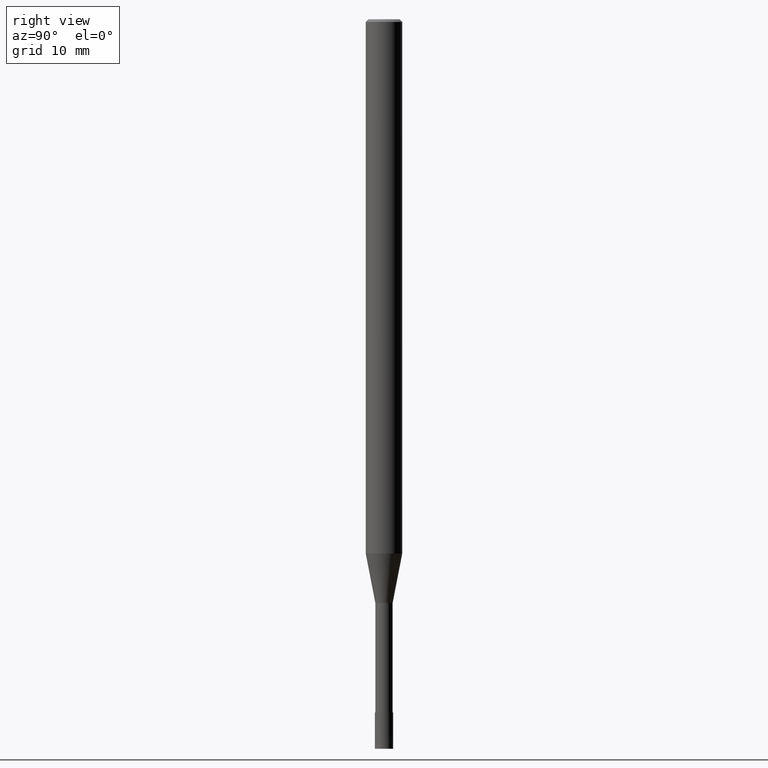
[diagram: clean part render]
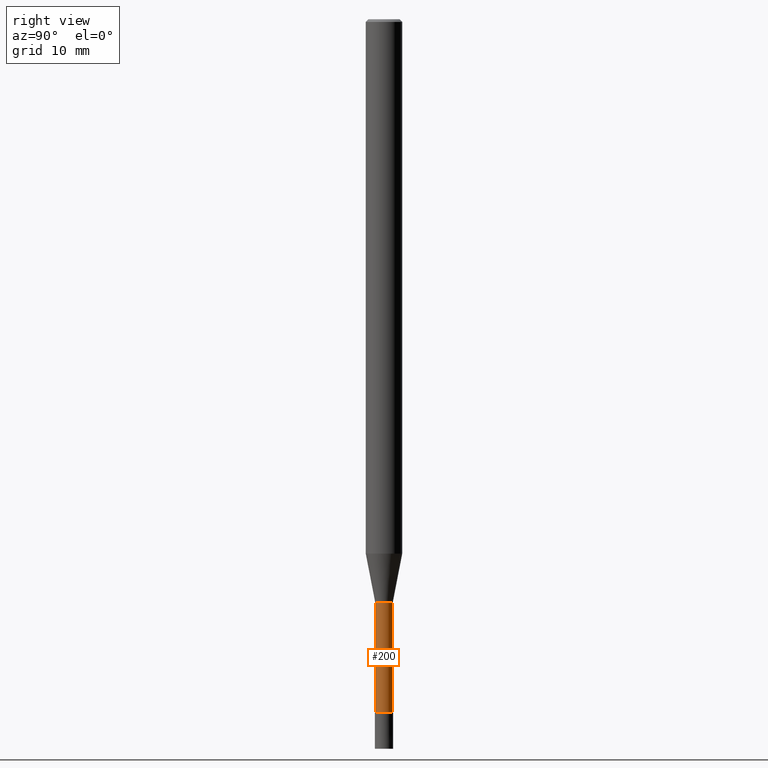
[diagram: same view with one face highlighted and labeled with its STEP entity id]
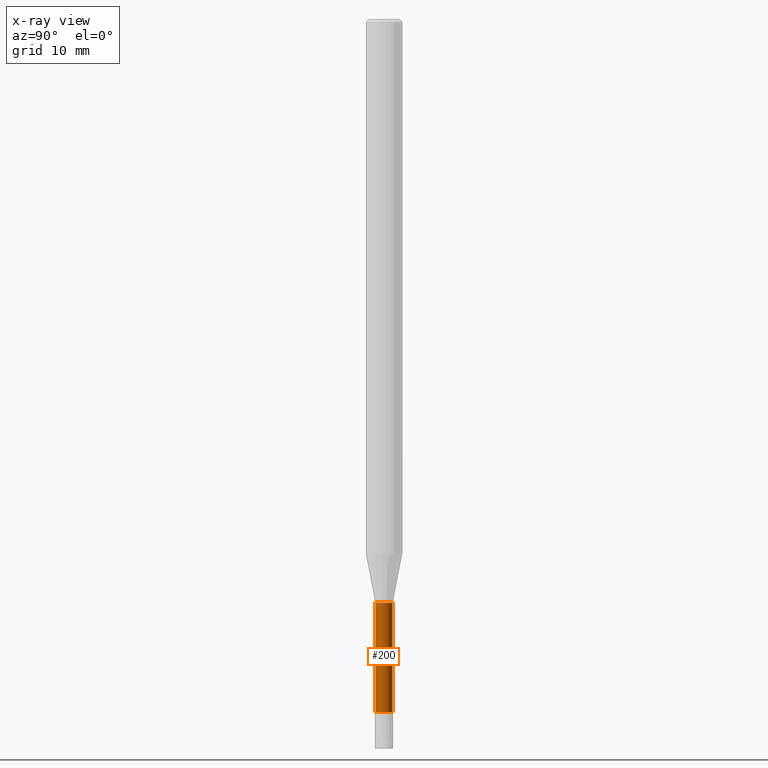
[diagram: x-ray of the same camera — body ghosted, the highlighted face saturated]
A machine part, right view. The second image highlights one B-rep face of the part: STEP entity #200.
The next image is the same camera in x-ray: the body ghosted, the highlighted face saturated — about 0% of this face is hidden behind the body in this view.
In plain terms, the highlighted cylindrical surface (edge-blend (fillet) strip) has radius 0.9499 mm, axis along (-0, -0, 1).
Its self-contained STEP definition (entity closure, byte-faithful):
#106=EDGE_CURVE('',#164,#178,#247,.T.);
#122=VERTEX_POINT('',#266);
#162=EDGE_CURVE('',#122,#164,#311,.T.);
#164=VERTEX_POINT('',#313);
#170=EDGE_CURVE('',#178,#196,#319,.T.);
#178=VERTEX_POINT('',#328);
#196=VERTEX_POINT('',#347);
#198=EDGE_CURVE('',#122,#196,#349,.T.);
#200=ADVANCED_FACE('',(#351),#352,.T.);
#247=CIRCLE('',#394,0.94995);
#266=CARTESIAN_POINT('',(0.0,0.94995,-64.0));
#311=LINE('',#478,#479);
#313=CARTESIAN_POINT('',(0.0,0.94995,-76.0));
#319=LINE('',#488,#489);
#328=CARTESIAN_POINT('',(1.16331480581357E-016,-0.94995,-76.0));
#347=CARTESIAN_POINT('',(1.16331480581357E-016,-0.94995,-64.0));
#349=CIRCLE('',#526,0.94995);
#351=FACE_OUTER_BOUND('',#528,.T.);
#352=CYLINDRICAL_SURFACE('',#529,0.94995);
#394=AXIS2_PLACEMENT_3D('',#573,#574,#575);
#478=CARTESIAN_POINT('',(-1.16331480581357E-016,0.94995,-70.0));
#479=VECTOR('',#661,1.0);
#488=CARTESIAN_POINT('',(1.16331480581357E-016,-0.94995,-70.0));
#489=VECTOR('',#666,1.0);
#526=AXIS2_PLACEMENT_3D('',#689,#690,#691);
#528=EDGE_LOOP('',(#693,#694,#695,#696));
#529=AXIS2_PLACEMENT_3D('',#697,#698,#699);
#573=CARTESIAN_POINT('',(0.0,0.0,-76.0));
#574=DIRECTION('',(0.0,0.0,-1.0));
#575=DIRECTION('',(0.0,1.0,0.0));
#661=DIRECTION('',(0.0,0.0,-1.0));
#666=DIRECTION('',(-0.0,-0.0,1.0));
#689=CARTESIAN_POINT('',(0.0,0.0,-64.0));
#690=DIRECTION('',(0.0,0.0,-1.0));
#691=DIRECTION('',(0.0,1.0,0.0));
#693=ORIENTED_EDGE('',*,*,#162,.F.);
#694=ORIENTED_EDGE('',*,*,#198,.T.);
#695=ORIENTED_EDGE('',*,*,#170,.F.);
#696=ORIENTED_EDGE('',*,*,#106,.F.);
#697=CARTESIAN_POINT('',(0.0,0.0,-70.0));
#698=DIRECTION('',(-0.0,-0.0,1.0));
#699=DIRECTION('',(0.0,1.0,0.0));